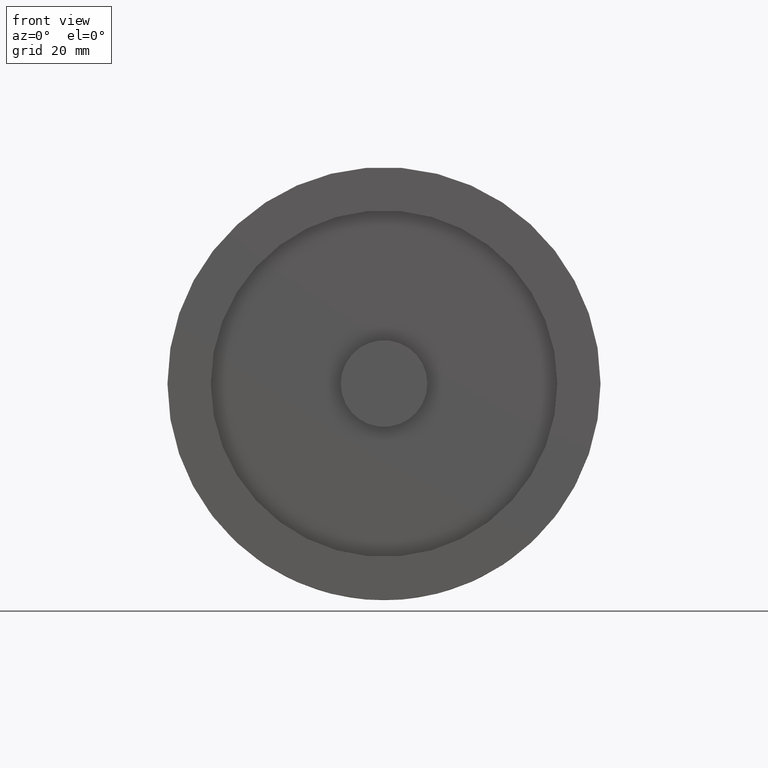
[diagram: clean part render]
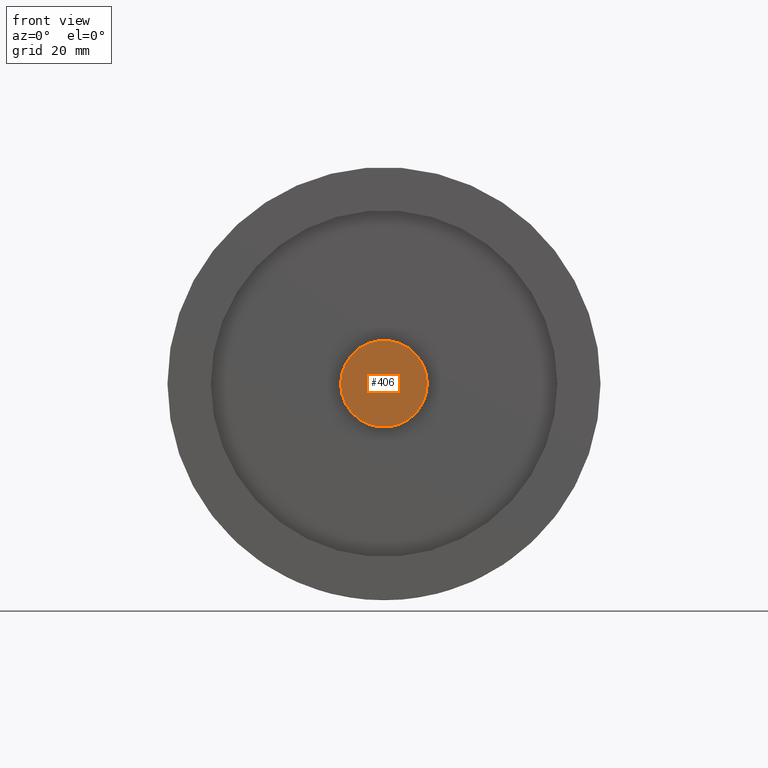
[diagram: same view with one face highlighted and labeled with its STEP entity id]
A machine part, front view. The second image highlights one B-rep face of the part: STEP entity #406.
In plain terms, the highlighted planar face has unit normal (0, -1, 0).
Its self-contained STEP definition (entity closure, byte-faithful):
#85=FACE_OUTER_BOUND('',#110,.T.);
#110=EDGE_LOOP('',(#315,#316));
#148=CIRCLE('',#493,8.);
#149=CIRCLE('',#494,8.);
#187=VERTEX_POINT('',#851);
#188=VERTEX_POINT('',#852);
#235=EDGE_CURVE('',#187,#188,#148,.T.);
#236=EDGE_CURVE('',#188,#187,#149,.T.);
#315=ORIENTED_EDGE('',*,*,#235,.F.);
#316=ORIENTED_EDGE('',*,*,#236,.F.);
#391=PLANE('',#492);
#406=ADVANCED_FACE('',(#85),#391,.T.);
#492=AXIS2_PLACEMENT_3D('',#850,#588,#589);
#493=AXIS2_PLACEMENT_3D('',#853,#590,#591);
#494=AXIS2_PLACEMENT_3D('',#854,#592,#593);
#588=DIRECTION('center_axis',(1.29031692906312E-13,-1.,0.));
#589=DIRECTION('ref_axis',(0.,0.,-1.));
#590=DIRECTION('center_axis',(-1.29031692906312E-13,1.,0.));
#591=DIRECTION('ref_axis',(-1.,-1.29031696758471E-13,0.));
#592=DIRECTION('center_axis',(-1.29031692906312E-13,1.,0.));
#593=DIRECTION('ref_axis',(-1.,-1.29031696758471E-13,0.));
#850=CARTESIAN_POINT('Origin',(-3.99999999999999,-5.15889414520743E-13,
0.));
#851=CARTESIAN_POINT('',(-7.99999999999999,-1.03275027418803E-12,0.));
#852=CARTESIAN_POINT('',(8.00000000000001,1.031813523511E-12,-9.79717439317883E-16));
#853=CARTESIAN_POINT('Origin',(6.66133814775113E-15,-4.96564594998361E-16,
0.));
#854=CARTESIAN_POINT('Origin',(6.66133814775113E-15,-4.96564594998361E-16,
0.));